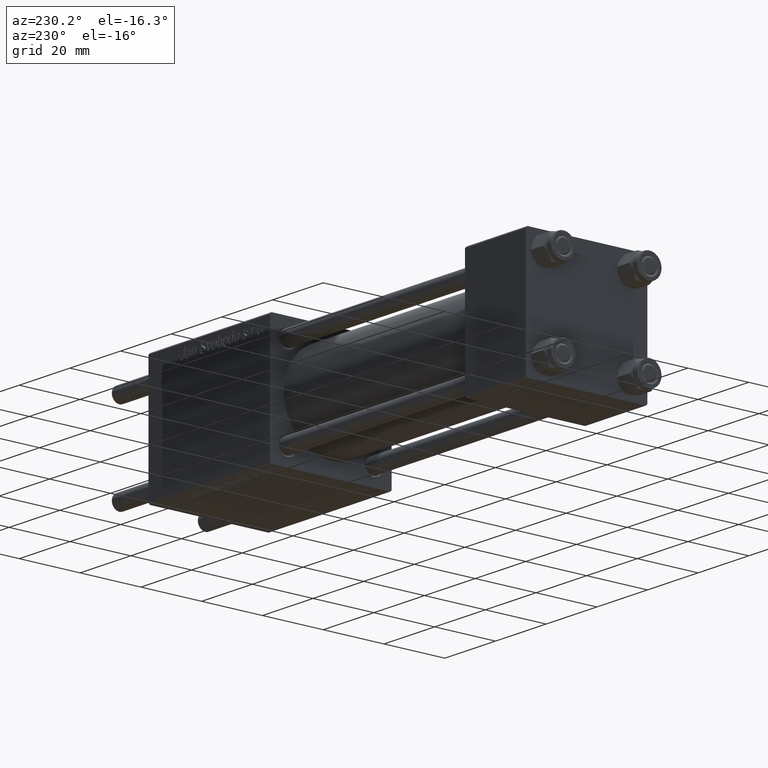
[diagram: clean part render]
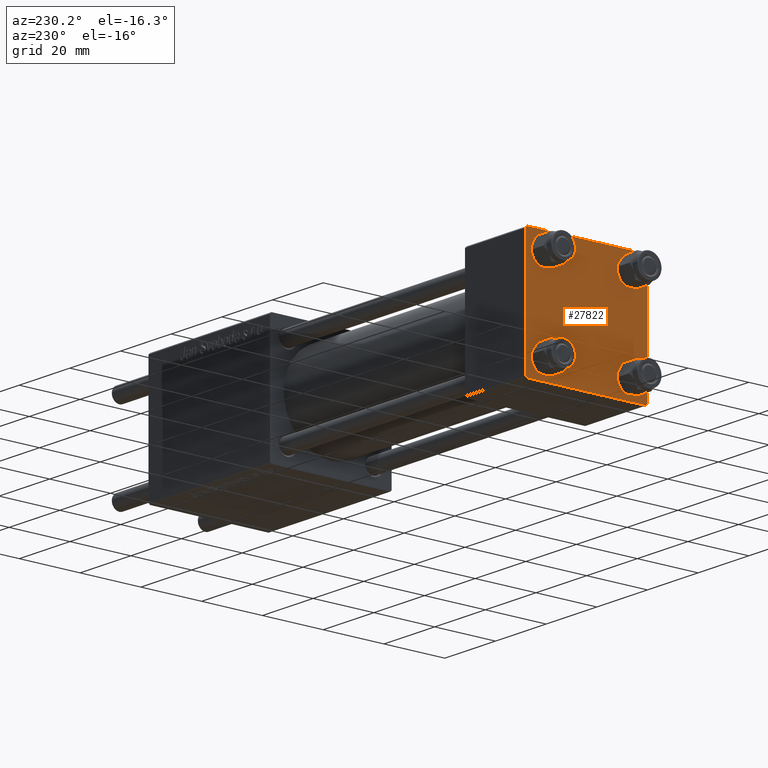
[diagram: same view with one face highlighted and labeled with its STEP entity id]
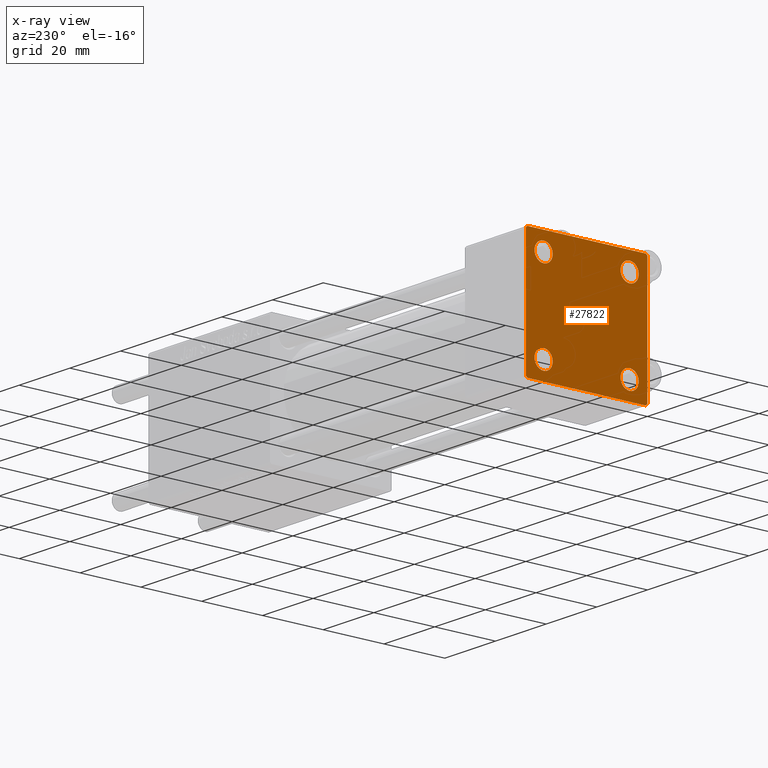
[diagram: x-ray of the same camera — body ghosted, the highlighted face saturated]
A machine part, auxiliary view. The second image highlights one B-rep face of the part: STEP entity #27822.
The next image is the same camera in x-ray: the body ghosted, the highlighted face saturated — about 0% of this face is hidden behind the body in this view.
In plain terms, the highlighted planar face has unit normal (-1, 0, 0).
Its self-contained STEP definition (entity closure, byte-faithful):
#237 = CARTESIAN_POINT ( 'NONE',  ( 0.000000000000000000, 14.14999999999999858, 14.15000000000000036 ) ) ;
#896 = DIRECTION ( 'NONE',  ( 1.000000000000000000, 0.000000000000000000, 0.000000000000000000 ) ) ;
#1117 = EDGE_CURVE ( 'NONE', #13150, #32598, #30098, .T. ) ;
#1756 = EDGE_CURVE ( 'NONE', #40674, #32230, #16478, .T. ) ;
#1840 = AXIS2_PLACEMENT_3D ( 'NONE', #9249, #26729, #22422 ) ;
#2684 = VERTEX_POINT ( 'NONE', #46377 ) ;
#2747 = LINE ( 'NONE', #25093, #21777 ) ;
#2896 = CARTESIAN_POINT ( 'NONE',  ( 0.000000000000000000, 14.14999999999999858, 17.14999999999998437 ) ) ;
#2901 = FACE_BOUND ( 'NONE', #36513, .T. ) ;
#5138 = DIRECTION ( 'NONE',  ( 0.000000000000000000, -1.000000000000000000, 1.734723475976807094E-16 ) ) ;
#5144 = CARTESIAN_POINT ( 'NONE',  ( 0.000000000000000000, -19.50000000000000711, -20.00000000000000000 ) ) ;
#5409 = CARTESIAN_POINT ( 'NONE',  ( 0.000000000000000000, 20.00000000000000000, 20.00000000000000000 ) ) ;
#5509 = LINE ( 'NONE', #14373, #36308 ) ;
#5667 = CARTESIAN_POINT ( 'NONE',  ( 0.000000000000000000, -14.14999999999999503, 14.15000000000000391 ) ) ;
#6948 = CARTESIAN_POINT ( 'NONE',  ( 0.000000000000000000, 14.14999999999999858, 11.15000000000001990 ) ) ;
#7078 = ORIENTED_EDGE ( 'NONE', *, *, #31303, .F. ) ;
#7095 = DIRECTION ( 'NONE',  ( 1.000000000000000000, 0.000000000000000000, 0.000000000000000000 ) ) ;
#7771 = CARTESIAN_POINT ( 'NONE',  ( 0.000000000000000000, 0.000000000000000000, 0.000000000000000000 ) ) ;
#8558 = CARTESIAN_POINT ( 'NONE',  ( 0.000000000000000000, 14.14999999999999858, -14.15000000000000036 ) ) ;
#8888 = DIRECTION ( 'NONE',  ( -0.000000000000000000, -0.7071067811865524577, -0.7071067811865426878 ) ) ;
#9249 = CARTESIAN_POINT ( 'NONE',  ( 0.000000000000000000, -14.14999999999999503, 14.15000000000000391 ) ) ;
#9261 = CARTESIAN_POINT ( 'NONE',  ( -0.000000000000000000, 19.75000000000013500, 19.74999999999986144 ) ) ;
#9560 = VERTEX_POINT ( 'NONE', #49977 ) ;
#9660 = VECTOR ( 'NONE', #55694, 1000.000000000000000 ) ;
#10156 = EDGE_CURVE ( 'NONE', #37052, #36367, #53388, .T. ) ;
#10365 = DIRECTION ( 'NONE',  ( 0.000000000000000000, 0.7071067811865425767, -0.7071067811865525687 ) ) ;
#10655 = CIRCLE ( 'NONE', #37232, 2.999999999999983569 ) ;
#10877 = EDGE_LOOP ( 'NONE', ( #50437, #21820 ) ) ;
#11517 = VERTEX_POINT ( 'NONE', #12096 ) ;
#11796 = EDGE_LOOP ( 'NONE', ( #30697, #28631 ) ) ;
#12096 = CARTESIAN_POINT ( 'NONE',  ( 0.000000000000000000, -19.49999999999999289, 19.99999999999998934 ) ) ;
#12362 = PLANE ( 'NONE',  #56548 ) ;
#12686 = VECTOR ( 'NONE', #27750, 1000.000000000000000 ) ;
#13150 = VERTEX_POINT ( 'NONE', #45028 ) ;
#13471 = CARTESIAN_POINT ( 'NONE',  ( -0.000000000000000000, 19.74999999999986855, -19.75000000000014211 ) ) ;
#13503 = ORIENTED_EDGE ( 'NONE', *, *, #47012, .T. ) ;
#13723 = EDGE_CURVE ( 'NONE', #9560, #11517, #34455, .T. ) ;
#13787 = ORIENTED_EDGE ( 'NONE', *, *, #44023, .T. ) ;
#14015 = CARTESIAN_POINT ( 'NONE',  ( 0.000000000000000000, 20.00000000000000000, -20.00000000000000711 ) ) ;
#14373 = CARTESIAN_POINT ( 'NONE',  ( 0.000000000000000000, -20.00000000000000355, 19.99999999999998934 ) ) ;
#14886 = VERTEX_POINT ( 'NONE', #55901 ) ;
#16478 = CIRCLE ( 'NONE', #1840, 2.999999999999983569 ) ;
#16643 = DIRECTION ( 'NONE',  ( -0.000000000000000000, 0.000000000000000000, 1.000000000000000000 ) ) ;
#17173 = CIRCLE ( 'NONE', #52895, 3.000000000000004441 ) ;
#17594 = DIRECTION ( 'NONE',  ( 0.000000000000000000, 0.000000000000000000, 1.000000000000000000 ) ) ;
#17720 = DIRECTION ( 'NONE',  ( 1.000000000000000000, 0.000000000000000000, 0.000000000000000000 ) ) ;
#17783 = EDGE_LOOP ( 'NONE', ( #39596, #28894, #48999, #13787, #54439, #38610, #7078, #18570 ) ) ;
#17810 = CARTESIAN_POINT ( 'NONE',  ( 0.000000000000000000, -14.14999999999999503, 17.14999999999998792 ) ) ;
#17857 = VERTEX_POINT ( 'NONE', #21356 ) ;
#17982 = CIRCLE ( 'NONE', #56460, 2.999999999999983569 ) ;
#18560 = DIRECTION ( 'NONE',  ( 1.000000000000000000, 0.000000000000000000, 0.000000000000000000 ) ) ;
#18570 = ORIENTED_EDGE ( 'NONE', *, *, #30450, .T. ) ;
#18679 = DIRECTION ( 'NONE',  ( 0.000000000000000000, 8.673617379884036705E-17, -1.000000000000000000 ) ) ;
#19161 = VERTEX_POINT ( 'NONE', #54804 ) ;
#19215 = CIRCLE ( 'NONE', #55873, 2.999999999999983569 ) ;
#19217 = ORIENTED_EDGE ( 'NONE', *, *, #25147, .T. ) ;
#19784 = AXIS2_PLACEMENT_3D ( 'NONE', #31305, #896, #48236 ) ;
#19822 = CARTESIAN_POINT ( 'NONE',  ( 0.000000000000000000, -19.75000000000020961, -19.74999999999979394 ) ) ;
#21033 = EDGE_CURVE ( 'NONE', #9560, #14886, #5509, .T. ) ;
#21202 = ORIENTED_EDGE ( 'NONE', *, *, #10156, .T. ) ;
#21356 = CARTESIAN_POINT ( 'NONE',  ( 0.000000000000000000, -14.14999999999999503, -17.15000000000000924 ) ) ;
#21416 = EDGE_CURVE ( 'NONE', #22807, #2684, #10655, .T. ) ;
#21777 = VECTOR ( 'NONE', #42304, 1000.000000000000000 ) ;
#21820 = ORIENTED_EDGE ( 'NONE', *, *, #35761, .T. ) ;
#22422 = DIRECTION ( 'NONE',  ( 0.000000000000000000, 0.000000000000000000, 1.000000000000000000 ) ) ;
#22807 = VERTEX_POINT ( 'NONE', #41968 ) ;
#23155 = DIRECTION ( 'NONE',  ( 0.000000000000000000, 0.000000000000000000, 1.000000000000000000 ) ) ;
#23770 = EDGE_CURVE ( 'NONE', #19161, #17857, #17173, .T. ) ;
#24298 = CARTESIAN_POINT ( 'NONE',  ( 0.000000000000000000, -14.14999999999999503, -14.15000000000000391 ) ) ;
#24588 = DIRECTION ( 'NONE',  ( 0.000000000000000000, 0.000000000000000000, 1.000000000000000000 ) ) ;
#24652 = CIRCLE ( 'NONE', #27443, 3.000000000000004441 ) ;
#24996 = EDGE_LOOP ( 'NONE', ( #43197, #19217 ) ) ;
#25093 = CARTESIAN_POINT ( 'NONE',  ( 0.000000000000000000, 20.00000000000000000, 20.00000000000000000 ) ) ;
#25147 = EDGE_CURVE ( 'NONE', #2684, #22807, #17982, .T. ) ;
#25267 = DIRECTION ( 'NONE',  ( -0.000000000000000000, 0.7071067811865500152, 0.7071067811865451302 ) ) ;
#25638 = DIRECTION ( 'NONE',  ( 1.000000000000000000, 0.000000000000000000, 0.000000000000000000 ) ) ;
#26729 = DIRECTION ( 'NONE',  ( 1.000000000000000000, 0.000000000000000000, 0.000000000000000000 ) ) ;
#26907 = LINE ( 'NONE', #5409, #12686 ) ;
#27443 = AXIS2_PLACEMENT_3D ( 'NONE', #24298, #7095, #24588 ) ;
#27750 = DIRECTION ( 'NONE',  ( 0.000000000000000000, -1.000000000000000000, -2.602085213965210149E-16 ) ) ;
#27822 = ADVANCED_FACE ( 'NONE', ( #38158, #37312, #51370, #2901, #51651 ), #12362, .T. ) ;
#28631 = ORIENTED_EDGE ( 'NONE', *, *, #1756, .T. ) ;
#28894 = ORIENTED_EDGE ( 'NONE', *, *, #1117, .T. ) ;
#29090 = CARTESIAN_POINT ( 'NONE',  ( 0.000000000000000000, 19.50000000000000711, -20.00000000000000711 ) ) ;
#29105 = VECTOR ( 'NONE', #10365, 999.9999999999998863 ) ;
#29892 = EDGE_CURVE ( 'NONE', #47912, #13150, #2747, .T. ) ;
#30098 = LINE ( 'NONE', #13471, #53121 ) ;
#30450 = EDGE_CURVE ( 'NONE', #43426, #47912, #36749, .T. ) ;
#30697 = ORIENTED_EDGE ( 'NONE', *, *, #37352, .T. ) ;
#31303 = EDGE_CURVE ( 'NONE', #43426, #11517, #26907, .T. ) ;
#31305 = CARTESIAN_POINT ( 'NONE',  ( 0.000000000000000000, 14.14999999999999858, 14.15000000000000036 ) ) ;
#32230 = VERTEX_POINT ( 'NONE', #17810 ) ;
#32350 = LINE ( 'NONE', #14015, #35684 ) ;
#32595 = CARTESIAN_POINT ( 'NONE',  ( 0.000000000000000000, -14.14999999999999503, -14.15000000000000391 ) ) ;
#32598 = VERTEX_POINT ( 'NONE', #29090 ) ;
#33002 = DIRECTION ( 'NONE',  ( -1.000000000000000000, 0.000000000000000000, -0.000000000000000000 ) ) ;
#34455 = LINE ( 'NONE', #34748, #35204 ) ;
#34659 = DIRECTION ( 'NONE',  ( 0.000000000000000000, 0.000000000000000000, 1.000000000000000000 ) ) ;
#34748 = CARTESIAN_POINT ( 'NONE',  ( -0.000000000000000000, -19.74999999999992539, 19.75000000000006395 ) ) ;
#35204 = VECTOR ( 'NONE', #25267, 1000.000000000000114 ) ;
#35617 = CARTESIAN_POINT ( 'NONE',  ( 0.000000000000000000, 20.00000000000000000, 19.49999999999999289 ) ) ;
#35656 = EDGE_CURVE ( 'NONE', #32598, #48195, #32350, .T. ) ;
#35684 = VECTOR ( 'NONE', #5138, 1000.000000000000000 ) ;
#35761 = EDGE_CURVE ( 'NONE', #17857, #19161, #24652, .T. ) ;
#36308 = VECTOR ( 'NONE', #18679, 1000.000000000000000 ) ;
#36367 = VERTEX_POINT ( 'NONE', #6948 ) ;
#36513 = EDGE_LOOP ( 'NONE', ( #21202, #13503 ) ) ;
#36749 = LINE ( 'NONE', #9261, #29105 ) ;
#36917 = DIRECTION ( 'NONE',  ( 0.000000000000000000, 0.000000000000000000, 1.000000000000000000 ) ) ;
#37052 = VERTEX_POINT ( 'NONE', #2896 ) ;
#37232 = AXIS2_PLACEMENT_3D ( 'NONE', #8558, #51295, #51863 ) ;
#37312 = FACE_BOUND ( 'NONE', #10877, .T. ) ;
#37352 = EDGE_CURVE ( 'NONE', #32230, #40674, #19215, .T. ) ;
#38138 = CIRCLE ( 'NONE', #19784, 2.999999999999983569 ) ;
#38158 = FACE_BOUND ( 'NONE', #11796, .T. ) ;
#38610 = ORIENTED_EDGE ( 'NONE', *, *, #13723, .T. ) ;
#39596 = ORIENTED_EDGE ( 'NONE', *, *, #29892, .T. ) ;
#40674 = VERTEX_POINT ( 'NONE', #54966 ) ;
#41968 = CARTESIAN_POINT ( 'NONE',  ( 0.000000000000000000, 14.14999999999999858, -11.15000000000001812 ) ) ;
#42304 = DIRECTION ( 'NONE',  ( 0.000000000000000000, 0.000000000000000000, -1.000000000000000000 ) ) ;
#43197 = ORIENTED_EDGE ( 'NONE', *, *, #21416, .T. ) ;
#43426 = VERTEX_POINT ( 'NONE', #43764 ) ;
#43764 = CARTESIAN_POINT ( 'NONE',  ( 0.000000000000000000, 19.50000000000000000, 20.00000000000000000 ) ) ;
#44023 = EDGE_CURVE ( 'NONE', #48195, #14886, #54831, .T. ) ;
#45028 = CARTESIAN_POINT ( 'NONE',  ( 0.000000000000000000, 20.00000000000000000, -19.50000000000002132 ) ) ;
#46377 = CARTESIAN_POINT ( 'NONE',  ( 0.000000000000000000, 14.14999999999999858, -17.14999999999998437 ) ) ;
#47012 = EDGE_CURVE ( 'NONE', #36367, #37052, #38138, .T. ) ;
#47912 = VERTEX_POINT ( 'NONE', #35617 ) ;
#48195 = VERTEX_POINT ( 'NONE', #5144 ) ;
#48236 = DIRECTION ( 'NONE',  ( 0.000000000000000000, 0.000000000000000000, 1.000000000000000000 ) ) ;
#48999 = ORIENTED_EDGE ( 'NONE', *, *, #35656, .T. ) ;
#49977 = CARTESIAN_POINT ( 'NONE',  ( 0.000000000000000000, -20.00000000000000355, 19.49999999999998224 ) ) ;
#50437 = ORIENTED_EDGE ( 'NONE', *, *, #23770, .T. ) ;
#50942 = DIRECTION ( 'NONE',  ( 1.000000000000000000, 0.000000000000000000, 0.000000000000000000 ) ) ;
#51295 = DIRECTION ( 'NONE',  ( 1.000000000000000000, 0.000000000000000000, 0.000000000000000000 ) ) ;
#51370 = FACE_BOUND ( 'NONE', #24996, .T. ) ;
#51651 = FACE_OUTER_BOUND ( 'NONE', #17783, .T. ) ;
#51863 = DIRECTION ( 'NONE',  ( 0.000000000000000000, 0.000000000000000000, 1.000000000000000000 ) ) ;
#52895 = AXIS2_PLACEMENT_3D ( 'NONE', #32595, #50942, #36917 ) ;
#53121 = VECTOR ( 'NONE', #8888, 1000.000000000000000 ) ;
#53388 = CIRCLE ( 'NONE', #56147, 2.999999999999983569 ) ;
#54439 = ORIENTED_EDGE ( 'NONE', *, *, #21033, .F. ) ;
#54804 = CARTESIAN_POINT ( 'NONE',  ( 0.000000000000000000, -14.14999999999999503, -11.15000000000000036 ) ) ;
#54831 = LINE ( 'NONE', #19822, #9660 ) ;
#54966 = CARTESIAN_POINT ( 'NONE',  ( 0.000000000000000000, -14.14999999999999503, 11.15000000000002345 ) ) ;
#55694 = DIRECTION ( 'NONE',  ( 0.000000000000000000, -0.7071067811865401342, 0.7071067811865549002 ) ) ;
#55772 = CARTESIAN_POINT ( 'NONE',  ( 0.000000000000000000, 14.14999999999999858, -14.15000000000000036 ) ) ;
#55873 = AXIS2_PLACEMENT_3D ( 'NONE', #5667, #18560, #23155 ) ;
#55901 = CARTESIAN_POINT ( 'NONE',  ( 0.000000000000000000, -20.00000000000000000, -19.49999999999999645 ) ) ;
#56147 = AXIS2_PLACEMENT_3D ( 'NONE', #237, #17720, #34659 ) ;
#56460 = AXIS2_PLACEMENT_3D ( 'NONE', #55772, #25638, #17594 ) ;
#56548 = AXIS2_PLACEMENT_3D ( 'NONE', #7771, #33002, #16643 ) ;